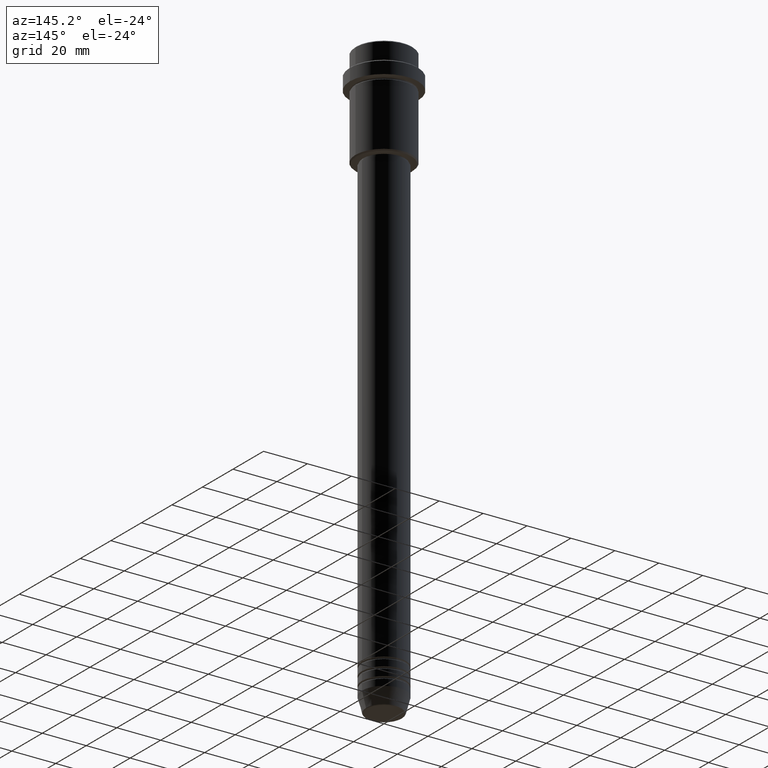
[diagram: clean part render]
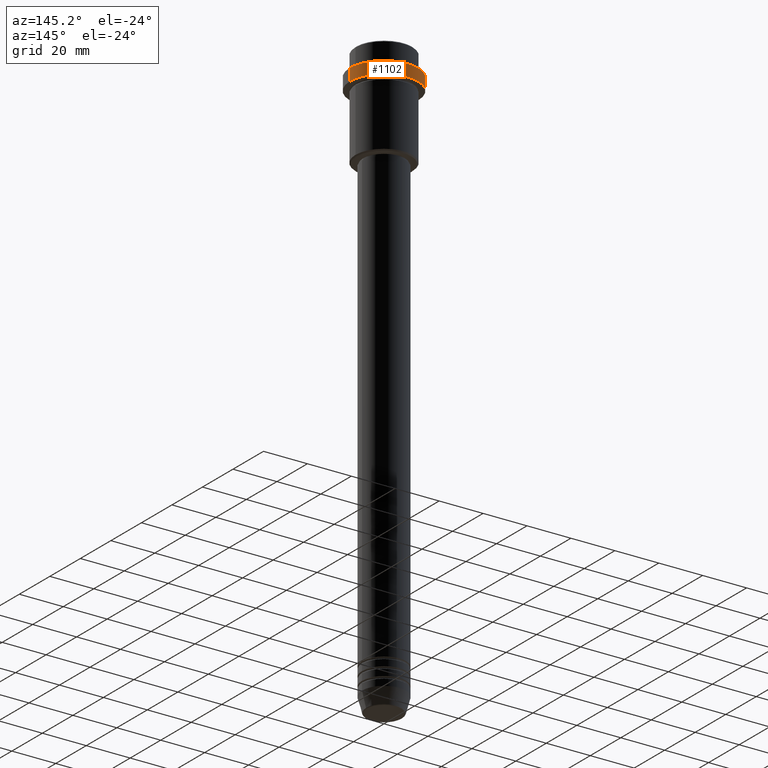
[diagram: same view with one face highlighted and labeled with its STEP entity id]
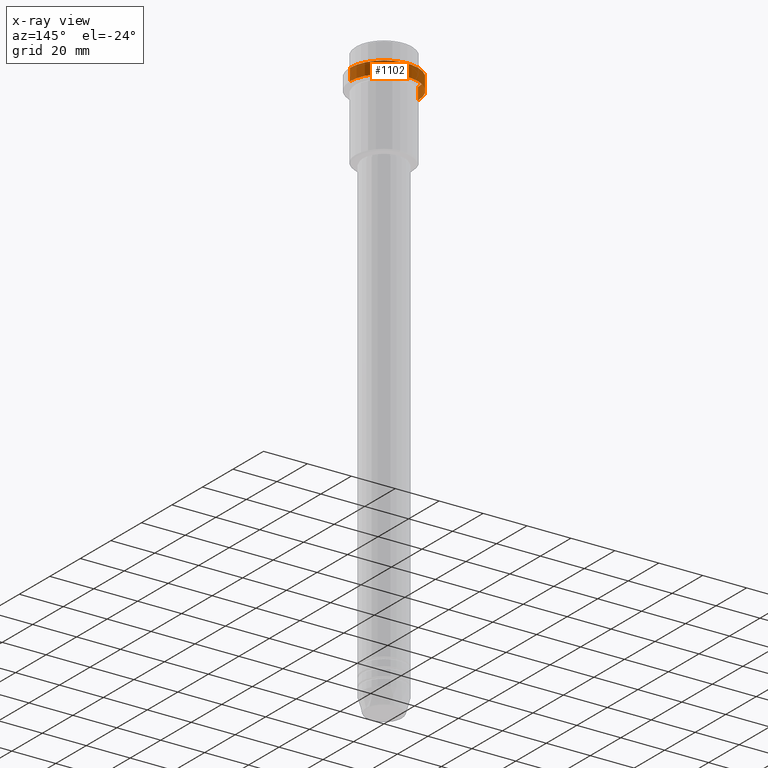
[diagram: x-ray of the same camera — body ghosted, the highlighted face saturated]
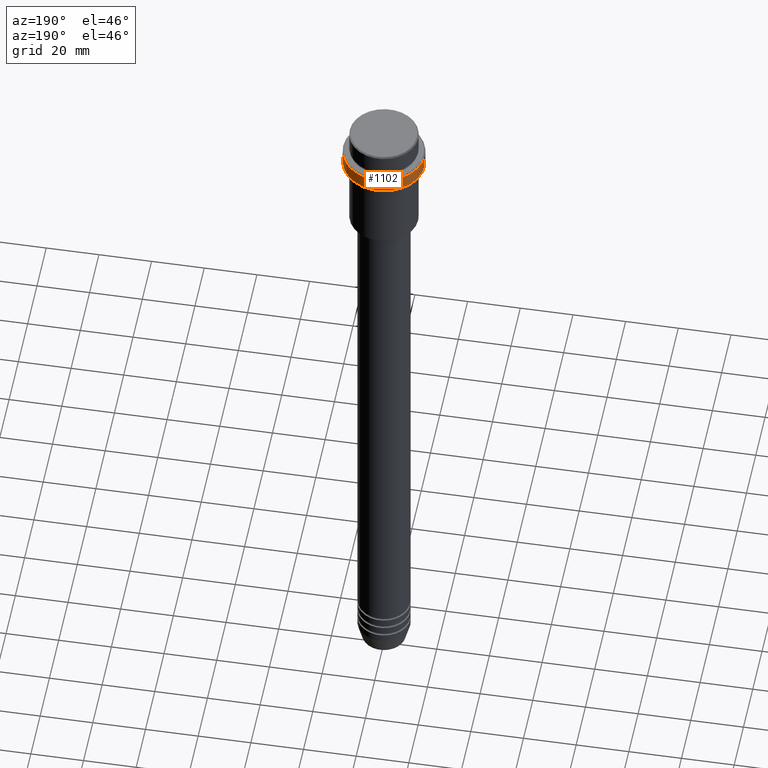
[diagram: same view with one face highlighted and labeled with its STEP entity id]
A machine part, auxiliary view. The second image highlights one B-rep face of the part: STEP entity #1102.
The next image is the same camera in x-ray: the body ghosted, the highlighted face saturated — about 0% of this face is hidden behind the body in this view.
A second angle (auxiliary view) of the same face is appended — the face is thin or edge-on in the first view.
In plain terms, the highlighted cylindrical surface (partial cylindrical patch) has radius 15.5 mm, axis along (-0, -0, 1).
Its self-contained STEP definition (entity closure, byte-faithful):
#31 = CARTESIAN_POINT ( 'NONE',  ( -15.50000000000000000, 1.898202538678397557E-15, -9.499999999999984013 ) ) ;
#121 = VECTOR ( 'NONE', #1128, 1000.000000000000000 ) ;
#206 = EDGE_LOOP ( 'NONE', ( #247, #1372, #872, #1021 ) ) ;
#240 = CARTESIAN_POINT ( 'NONE',  ( -15.50000000000000000, 1.898202538678397557E-15, -15.00000000000000000 ) ) ;
#247 = ORIENTED_EDGE ( 'NONE', *, *, #1373, .T. ) ;
#292 = EDGE_CURVE ( 'NONE', #1151, #1238, #883, .T. ) ;
#347 = LINE ( 'NONE', #780, #121 ) ;
#425 = DIRECTION ( 'NONE',  ( 1.000000000000000000, 0.000000000000000000, 0.000000000000000000 ) ) ;
#477 = DIRECTION ( 'NONE',  ( -0.000000000000000000, -0.000000000000000000, 1.000000000000000000 ) ) ;
#498 = CARTESIAN_POINT ( 'NONE',  ( 15.50000000000000000, 0.000000000000000000, -9.499999999999984013 ) ) ;
#516 = AXIS2_PLACEMENT_3D ( 'NONE', #1139, #477, #919 ) ;
#608 = AXIS2_PLACEMENT_3D ( 'NONE', #662, #1416, #425 ) ;
#640 = CARTESIAN_POINT ( 'NONE',  ( 15.50000000000000000, 0.000000000000000000, -15.00000000000000000 ) ) ;
#662 = CARTESIAN_POINT ( 'NONE',  ( 0.000000000000000000, 0.000000000000000000, 0.000000000000000000 ) ) ;
#780 = CARTESIAN_POINT ( 'NONE',  ( -15.50000000000000000, 1.898202538678397557E-15, 0.000000000000000000 ) ) ;
#813 = EDGE_CURVE ( 'NONE', #1377, #1300, #347, .T. ) ;
#872 = ORIENTED_EDGE ( 'NONE', *, *, #1156, .T. ) ;
#879 = CIRCLE ( 'NONE', #1110, 15.50000000000000000 ) ;
#883 = LINE ( 'NONE', #1083, #904 ) ;
#904 = VECTOR ( 'NONE', #1018, 1000.000000000000000 ) ;
#919 = DIRECTION ( 'NONE',  ( 1.000000000000000000, 0.000000000000000000, 0.000000000000000000 ) ) ;
#973 = CYLINDRICAL_SURFACE ( 'NONE', #608, 15.50000000000000000 ) ;
#1018 = DIRECTION ( 'NONE',  ( -0.000000000000000000, -0.000000000000000000, 1.000000000000000000 ) ) ;
#1021 = ORIENTED_EDGE ( 'NONE', *, *, #292, .F. ) ;
#1075 = CARTESIAN_POINT ( 'NONE',  ( 0.000000000000000000, 0.000000000000000000, -9.499999999999984013 ) ) ;
#1083 = CARTESIAN_POINT ( 'NONE',  ( 15.50000000000000000, 0.000000000000000000, 0.000000000000000000 ) ) ;
#1102 = ADVANCED_FACE ( 'NONE', ( #1203 ), #973, .T. ) ;
#1104 = DIRECTION ( 'NONE',  ( 1.000000000000000000, 0.000000000000000000, 0.000000000000000000 ) ) ;
#1110 = AXIS2_PLACEMENT_3D ( 'NONE', #1075, #1291, #1104 ) ;
#1128 = DIRECTION ( 'NONE',  ( -0.000000000000000000, -0.000000000000000000, 1.000000000000000000 ) ) ;
#1130 = CIRCLE ( 'NONE', #516, 15.50000000000000000 ) ;
#1139 = CARTESIAN_POINT ( 'NONE',  ( 0.000000000000000000, 0.000000000000000000, -15.00000000000000000 ) ) ;
#1151 = VERTEX_POINT ( 'NONE', #640 ) ;
#1156 = EDGE_CURVE ( 'NONE', #1300, #1238, #879, .T. ) ;
#1203 = FACE_OUTER_BOUND ( 'NONE', #206, .T. ) ;
#1238 = VERTEX_POINT ( 'NONE', #498 ) ;
#1291 = DIRECTION ( 'NONE',  ( 0.000000000000000000, 0.000000000000000000, -1.000000000000000000 ) ) ;
#1300 = VERTEX_POINT ( 'NONE', #31 ) ;
#1372 = ORIENTED_EDGE ( 'NONE', *, *, #813, .T. ) ;
#1373 = EDGE_CURVE ( 'NONE', #1151, #1377, #1130, .T. ) ;
#1377 = VERTEX_POINT ( 'NONE', #240 ) ;
#1416 = DIRECTION ( 'NONE',  ( -0.000000000000000000, -0.000000000000000000, 1.000000000000000000 ) ) ;